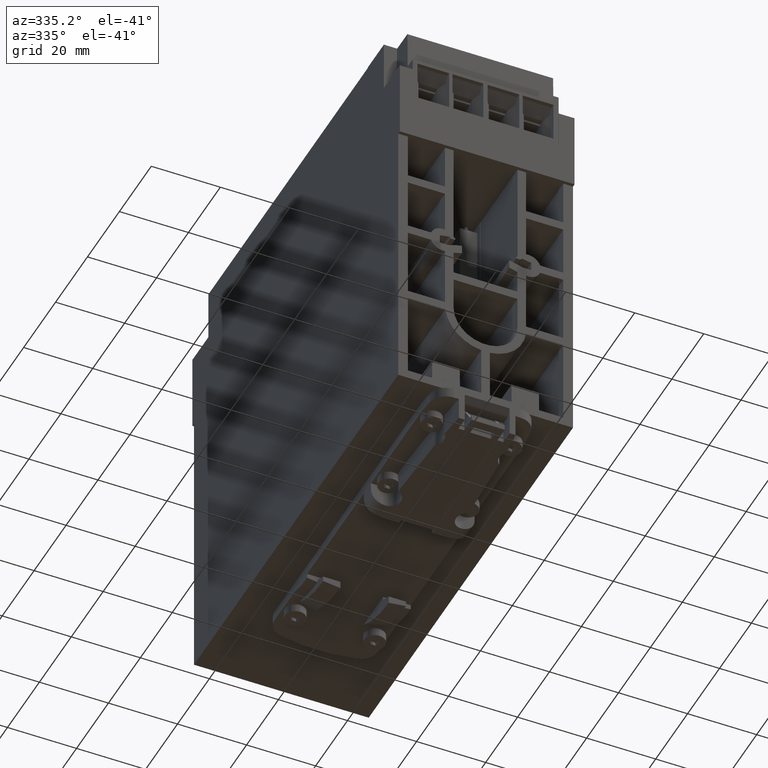
[diagram: clean part render]
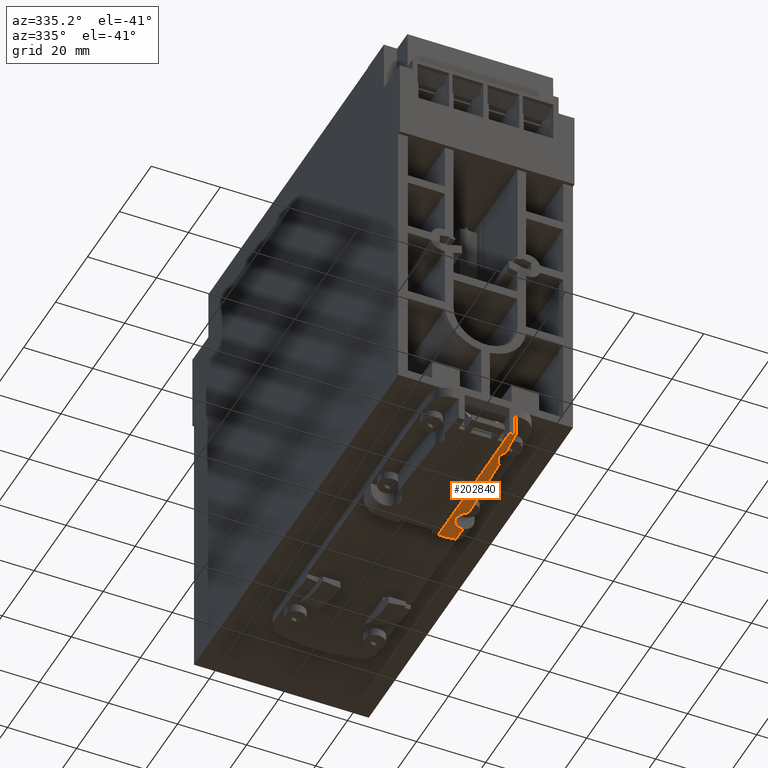
[diagram: same view with one face highlighted and labeled with its STEP entity id]
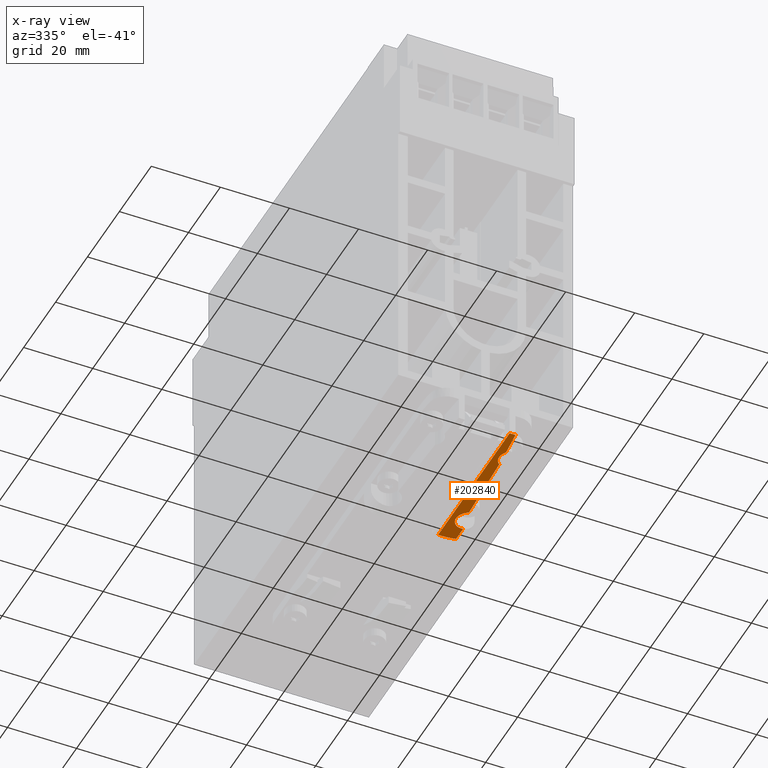
[diagram: x-ray of the same camera — body ghosted, the highlighted face saturated]
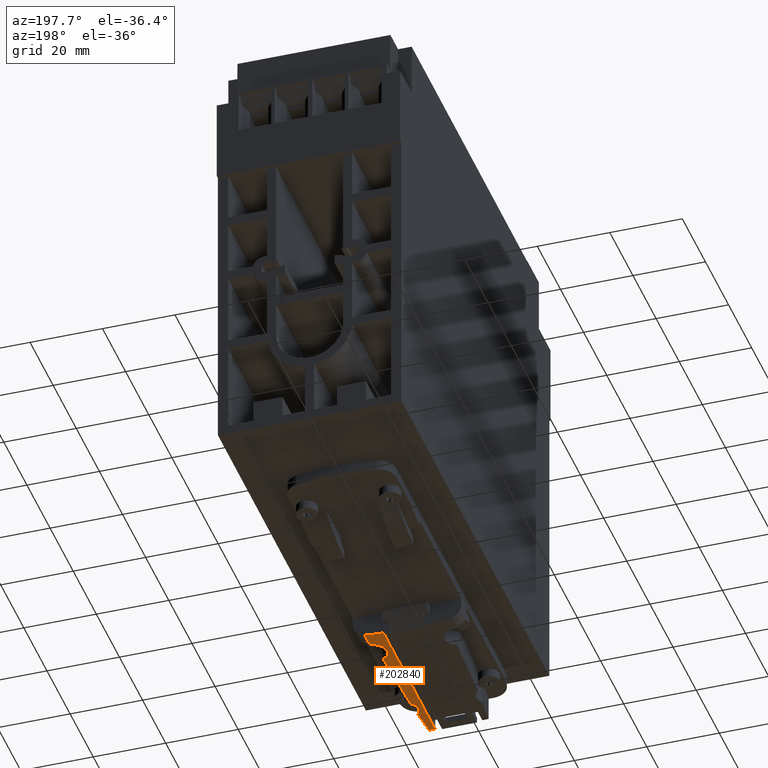
[diagram: same view with one face highlighted and labeled with its STEP entity id]
A machine part, auxiliary view. The second image highlights one B-rep face of the part: STEP entity #202840.
The next image is the same camera in x-ray: the body ghosted, the highlighted face saturated — about 0% of this face is hidden behind the body in this view.
A second angle (auxiliary view) of the same face is appended — the face is thin or edge-on in the first view.
In plain terms, the highlighted cylindrical surface (partial cylindrical patch) has radius 30 mm, axis along (0, -1, 0).
Its self-contained STEP definition (entity closure, byte-faithful):
#173400=CARTESIAN_POINT('',(6.79999999999999,12.4,19.0999999999998));
#173410=VERTEX_POINT('',#173400);
#192300=CARTESIAN_POINT('',(6.79999999999999,12.4,-21.85));
#192310=VERTEX_POINT('',#192300);
#192340=CARTESIAN_POINT('',(6.8,42.4,-21.85));
#192350=DIRECTION('',(0.,0.,1.));
#192360=DIRECTION('',(1.,0.,0.));
#192370=AXIS2_PLACEMENT_3D('',#192340,#192350,#192360);
#192380=CIRCLE('',#192370,30.);
#192390=CARTESIAN_POINT('',(11.9923076923077,12.8527507062264,-21.85));
#192400=VERTEX_POINT('',#192390);
#192410=EDGE_CURVE('',#192310,#192400,#192380,.T.);
#200650=CARTESIAN_POINT('',(8.51648376099853,12.4491455297478,23.));
#200660=VERTEX_POINT('',#200650);
#200690=CARTESIAN_POINT('',(6.8,42.4,23.));
#200700=DIRECTION('',(0.,0.,1.));
#200710=DIRECTION('',(1.,0.,0.));
#200720=AXIS2_PLACEMENT_3D('',#200690,#200700,#200710);
#200730=CIRCLE('',#200720,30.);
#200740=CARTESIAN_POINT('',(6.79999999999999,12.4,23.));
#200750=VERTEX_POINT('',#200740);
#200760=EDGE_CURVE('',#200750,#200660,#200730,.T.);
#201160=CARTESIAN_POINT('',(6.79999999999999,12.4,-21.85));
#201170=DIRECTION('',(0.,0.,1.));
#201180=VECTOR('',#201170,1.);
#201190=LINE('',#201160,#201180);
#201200=EDGE_CURVE('',#173410,#200750,#201190,.T.);
#201510=CARTESIAN_POINT('',(6.8,42.4,-21.85));
#201520=DIRECTION('',(0.,0.,1.));
#201530=DIRECTION('',(1.,0.,0.));
#201540=AXIS2_PLACEMENT_3D('',#201510,#201520,#201530);
#201550=CYLINDRICAL_SURFACE('',#201540,30.);
#201560=ORIENTED_EDGE('',*,*,#200760,.F.);
#201570=CARTESIAN_POINT('',(-390.9,19.,-17.85));
#201580=DIRECTION('',(0.,-1.,0.));
#201590=DIRECTION('',(0.,0.,-1.));
#201600=AXIS2_PLACEMENT_3D('',#201570,#201580,#201590);
#201610=CYLINDRICAL_SURFACE('',#201600,401.5);
#201620=CARTESIAN_POINT('',(9.21199221675876,12.4971189758128,
15.506314010034));
#201630=CARTESIAN_POINT('',(9.15988531776563,12.4929159883245,
16.1313409586983));
#201640=CARTESIAN_POINT('',(9.10631407376638,12.4887318663781,
16.7562431371558));
#201650=CARTESIAN_POINT('',(9.05127941535789,12.4845902418907,
17.381010403007));
#201660=CARTESIAN_POINT('',(8.99624475694129,12.4804486174026,
18.0057776689504));
#201670=CARTESIAN_POINT('',(8.93974668414181,12.476349490737,
18.6304100221523));
#201680=CARTESIAN_POINT('',(8.88178622019473,12.4723177286357,
19.254897339683));
#201690=CARTESIAN_POINT('',(8.82382575624137,12.468285966534,
19.8793846572815));
#201700=CARTESIAN_POINT('',(8.76440290115058,12.4643215693288,
20.5037269392627));
#201710=CARTESIAN_POINT('',(8.70351877063217,12.4604506331348,
21.1279140812865));
#201720=CARTESIAN_POINT('',(8.64263464011541,12.4565796969409,
21.7521012232934));
#201730=CARTESIAN_POINT('',(8.58028923416539,12.4528022220351,
22.3761332255324));
#201740=CARTESIAN_POINT('',(8.51648376099891,12.4491455297474,
22.9999999999967));
#201750=B_SPLINE_CURVE_WITH_KNOTS('',3,(#201620,#201630,#201640,#201650,
#201660,#201670,#201680,#201690,#201700,#201710,#201720,#201730,#201740)
,.UNSPECIFIED.,.F.,.F.,(4,3,3,3,4),(0.,1.88161596019884,3.7631943659863,
5.64471458200528,7.52615607687756),.UNSPECIFIED.);
#201760=SURFACE_CURVE('',#201750,(#201550,#201610),.CURVE_3D.);
#201770=CARTESIAN_POINT('',(9.21199221675927,12.4971189758195,
15.5063140100347));
#201780=VERTEX_POINT('',#201770);
#201790=EDGE_CURVE('',#201780,#200660,#201760,.T.);
#201800=ORIENTED_EDGE('',*,*,#201790,.T.);
#201810=CARTESIAN_POINT('',(11.8,19.,13.15));
#201820=DIRECTION('',(0.,-1.,0.));
#201830=DIRECTION('',(1.,0.,0.));
#201840=AXIS2_PLACEMENT_3D('',#201810,#201820,#201830);
#201850=CYLINDRICAL_SURFACE('',#201840,3.5);
#201860=CARTESIAN_POINT('',(9.2119922167592,12.4971189758194,
15.5063140100348));
#201870=CARTESIAN_POINT('',(8.89231564503648,12.471333587373,
15.1552039914995));
#201880=CARTESIAN_POINT('',(8.64496070830612,12.4563800293901,
14.73911426645));
#201890=CARTESIAN_POINT('',(8.48946141427881,12.4476091082922,
14.2859288148696));
#201900=CARTESIAN_POINT('',(8.33505079808133,12.4388995939511,
13.8359161941181));
#201910=CARTESIAN_POINT('',(8.27396438101783,12.4362094689366,
13.3573406713456));
#201920=CARTESIAN_POINT('',(8.31016736857437,12.4380342013597,
12.8834137951115));
#201930=CARTESIAN_POINT('',(8.34662222052862,12.439871628457,
12.4061898068074));
#201940=CARTESIAN_POINT('',(8.48175687196713,12.4463568419664,
11.9398526612448));
#201950=CARTESIAN_POINT('',(8.70277116461486,12.4604031106778,
11.519916093798));
#201960=CARTESIAN_POINT('',(8.92579018520976,12.4745767872012,
11.0961704578845));
#201970=CARTESIAN_POINT('',(9.23410709402306,12.4966139395756,
10.7228826429394));
#201980=CARTESIAN_POINT('',(9.6031272269612,12.5312457951542,
10.4253440549144));
#201990=B_SPLINE_CURVE_WITH_KNOTS('',3,(#201860,#201870,#201880,#201890,
#201900,#201910,#201920,#201930,#201940,#201950,#201960,#201970,#201980)
,.UNSPECIFIED.,.F.,.F.,(4,3,3,3,4),(0.,1.4290543912816,2.85283973389682,
4.28184927705033,5.71087819009126),.UNSPECIFIED.);
#202000=SURFACE_CURVE('',#201990,(#201550,#201850),.CURVE_3D.);
#202010=CARTESIAN_POINT('',(9.60312722696179,12.5312457951546,
10.4253440549151));
#202020=VERTEX_POINT('',#202010);
#202030=EDGE_CURVE('',#201780,#202020,#202000,.T.);
#202040=ORIENTED_EDGE('',*,*,#202030,.F.);
#202050=CARTESIAN_POINT('',(-390.9,19.,-17.85));
#202060=DIRECTION('',(0.,-1.,0.));
#202070=DIRECTION('',(0.,0.,-1.));
#202080=AXIS2_PLACEMENT_3D('',#202050,#202060,#202070);
#202090=CYLINDRICAL_SURFACE('',#202080,401.5);
#202100=CARTESIAN_POINT('',(10.5342996994724,12.6333239048308,
-10.5868722444188));
#202110=CARTESIAN_POINT('',(10.5025896935877,12.6293458098273,
-8.83425485502687));
#202120=CARTESIAN_POINT('',(10.4594019143171,12.6239725744098,
-7.08184749612954));
#202130=CARTESIAN_POINT('',(10.4047407057077,12.617356657836,
-5.32981281602969));
#202140=CARTESIAN_POINT('',(10.3500789194254,12.6107406713437,
-3.57775962000123));
#202150=CARTESIAN_POINT('',(10.2839409571325,12.6028817364194,
-1.82600772218311));
#202160=CARTESIAN_POINT('',(10.2063346099497,12.5940126061045,
-0.0747831019942282));
#202170=CARTESIAN_POINT('',(10.1287278364904,12.5851434270732,
1.67645113732622));
#202180=CARTESIAN_POINT('',(10.0396549103274,12.5752643828549,
3.42711650235584));
#202190=CARTESIAN_POINT('',(9.93912288779136,12.564686904687,
5.1771049536442));
#202200=CARTESIAN_POINT('',(9.8385888273263,12.5541092120983,
6.92712887972111));
#202210=CARTESIAN_POINT('',(9.72658664340953,12.5428322325831,
8.67661617819074));
#202220=CARTESIAN_POINT('',(9.60312722696183,12.5312457951543,
10.4253440549189));
#202230=B_SPLINE_CURVE_WITH_KNOTS('',3,(#202100,#202110,#202120,#202130,
#202140,#202150,#202160,#202170,#202180,#202190,#202200,#202210,#202220)
,.UNSPECIFIED.,.F.,.F.,(4,3,3,3,4),(0.,5.25871798685744,10.5175815892494
,15.7763825718708,21.035509994106),.UNSPECIFIED.);
#202240=SURFACE_CURVE('',#202230,(#201550,#202090),.CURVE_3D.);
#202250=CARTESIAN_POINT('',(10.5342996994727,12.6333239048342,
-10.5868722444187));
#202260=VERTEX_POINT('',#202250);
#202270=EDGE_CURVE('',#202260,#202020,#202240,.T.);
#202280=ORIENTED_EDGE('',*,*,#202270,.T.);
#202290=CARTESIAN_POINT('',(11.8,19.,-13.85));
#202300=DIRECTION('',(0.,-1.,0.));
#202310=DIRECTION('',(1.,0.,0.));
#202320=AXIS2_PLACEMENT_3D('',#202290,#202300,#202310);
#202330=CYLINDRICAL_SURFACE('',#202320,3.5);
#202340=CARTESIAN_POINT('',(10.5342996994728,12.6333239048342,
-10.5868722444187));
#202350=CARTESIAN_POINT('',(10.1499998779071,12.5851125861235,
-10.735934259786));
#202360=CARTESIAN_POINT('',(9.7961515574511,12.5483592998617,
-10.9506424716958));
#202370=CARTESIAN_POINT('',(9.48535189592324,12.5204269576173,
-11.2246611353382));
#202380=CARTESIAN_POINT('',(9.17391815887561,12.4924376294215,
-11.4992388360327));
#202390=CARTESIAN_POINT('',(8.91546367104202,12.4740330218434,
-11.8250203267207));
#202400=CARTESIAN_POINT('',(8.71917867823074,12.4614503824747,
-12.1891146989235));
#202410=CARTESIAN_POINT('',(8.33779701601043,12.4370023192334,
-12.896549917923));
#202420=CARTESIAN_POINT('',(8.21192642256305,12.4328708565665,
-13.7144248195178));
#202430=CARTESIAN_POINT('',(8.3612741620636,12.4406538290491,
-14.5020464795615));
#202440=CARTESIAN_POINT('',(8.51092927633422,12.4484528197813,
-15.2912891552796));
#202450=CARTESIAN_POINT('',(8.93098061196097,12.4695017420267,
-16.0080795984267));
#202460=CARTESIAN_POINT('',(9.54144449834768,12.5255212252583,
-16.5237477528666));
#202470=CARTESIAN_POINT('',(9.85747500733224,12.5545219019462,
-16.7907035432892));
#202480=CARTESIAN_POINT('',(10.2208289293948,12.5931674202026,
-17.0000122002956));
#202490=CARTESIAN_POINT('',(10.6041534683418,12.642170502718,
-17.1393694035062));
#202500=CARTESIAN_POINT('',(10.9888088342552,12.6913437142417,
-17.2792104273575));
#202510=CARTESIAN_POINT('',(11.3945233165549,12.7510659677584,
-17.3499757428376));
#202520=CARTESIAN_POINT('',(11.7997905624816,12.8195656838142,
-17.3499999937414));
#202530=B_SPLINE_CURVE_WITH_KNOTS('',3,(#202340,#202350,#202360,#202370,
#202380,#202390,#202400,#202410,#202420,#202430,#202440,#202450,#202460,
#202470,#202480,#202490,#202500,#202510,#202520),.UNSPECIFIED.,.F.,.F.,(
4,3,3,3,3,3,4),(0.,1.23928390105492,2.4789466967372,4.86560860602104,
7.25439560188893,8.49455414880313,9.7277176641783),.UNSPECIFIED.);
#202540=SURFACE_CURVE('',#202530,(#201550,#202330),.CURVE_3D.);
#202550=CARTESIAN_POINT('',(11.799790562482,12.8195656838143,
-17.3499999937414));
#202560=VERTEX_POINT('',#202550);
#202570=EDGE_CURVE('',#202260,#202560,#202540,.T.);
#202580=ORIENTED_EDGE('',*,*,#202570,.F.);
#202590=CARTESIAN_POINT('',(6.8,42.4,-17.35));
#202600=DIRECTION('',(0.,0.,1.));
#202610=DIRECTION('',(1.,0.,0.));
#202620=AXIS2_PLACEMENT_3D('',#202590,#202600,#202610);
#202630=CIRCLE('',#202620,30.);
#202640=CARTESIAN_POINT('',(11.9923076923077,12.8527507062264,-17.35));
#202650=VERTEX_POINT('',#202640);
#202660=EDGE_CURVE('',#202560,#202650,#202630,.T.);
#202670=ORIENTED_EDGE('',*,*,#202660,.F.);
#202680=CARTESIAN_POINT('',(11.9923076923077,12.8527507062264,-21.85));
#202690=DIRECTION('',(0.,0.,1.));
#202700=VECTOR('',#202690,1.);
#202710=LINE('',#202680,#202700);
#202720=EDGE_CURVE('',#192400,#202650,#202710,.T.);
#202730=ORIENTED_EDGE('',*,*,#202720,.T.);
#202740=ORIENTED_EDGE('',*,*,#192410,.T.);
#202750=CARTESIAN_POINT('',(6.79999999999999,12.4,-21.85));
#202760=DIRECTION('',(0.,0.,1.));
#202770=VECTOR('',#202760,1.);
#202780=LINE('',#202750,#202770);
#202790=EDGE_CURVE('',#192310,#173410,#202780,.T.);
#202800=ORIENTED_EDGE('',*,*,#202790,.F.);
#202810=ORIENTED_EDGE('',*,*,#201200,.F.);
#202820=EDGE_LOOP('',(#202810,#202800,#202740,#202730,#202670,#202580,
#202280,#202040,#201800,#201560));
#202830=FACE_OUTER_BOUND('',#202820,.T.);
#202840=ADVANCED_FACE('',(#202830),#201550,.T.);